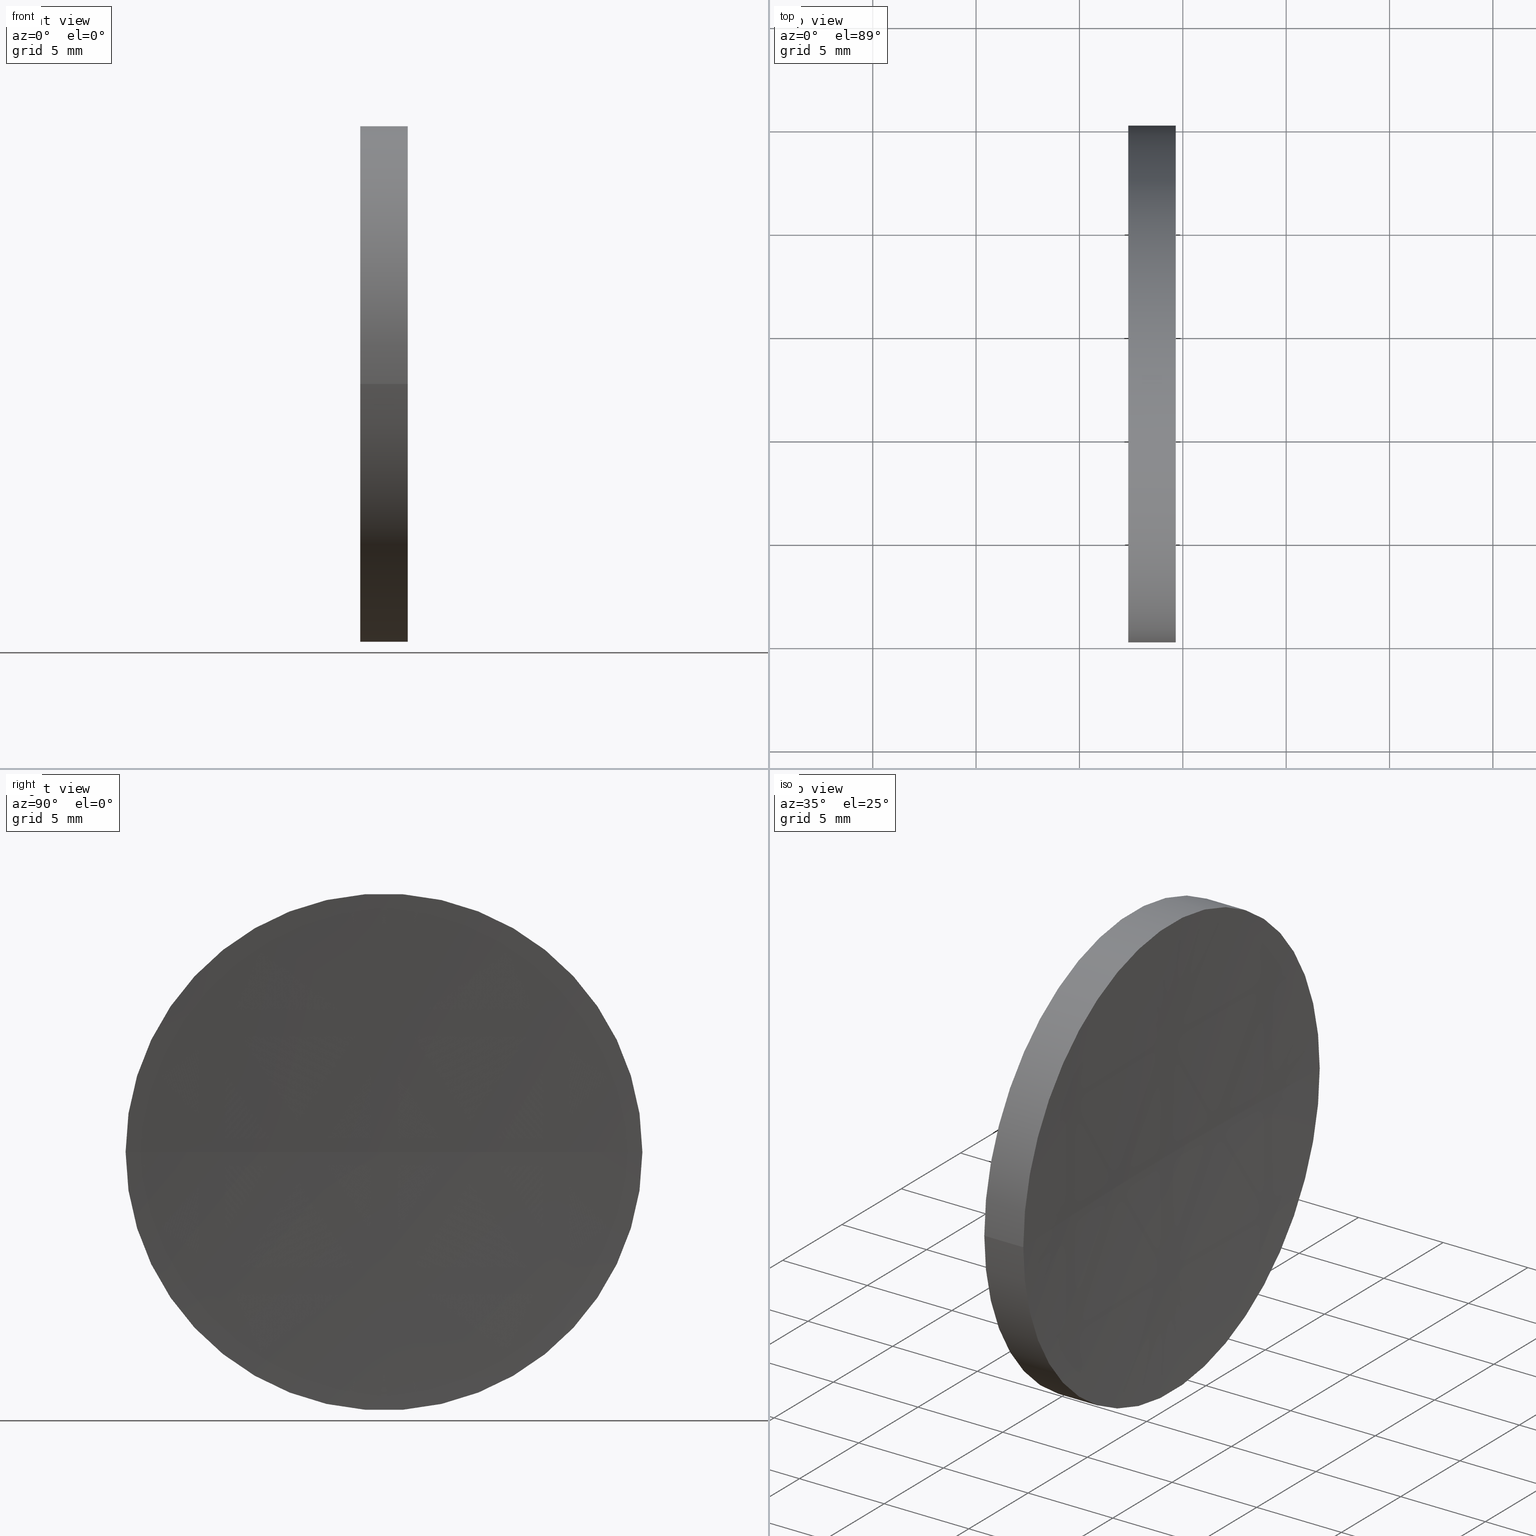
[diagram: canonical four-view strip — front | top / right | iso, engineering-drawing reading convention]
A machine part, canonical four-view strip (front | top / right | iso — engineering-drawing reading convention). The complete STEP part file that produces these views, byte-faithful:
ISO-10303-21;
HEADER;
FILE_DESCRIPTION (( 'STEP AP214' ),
    '1' );
FILE_NAME ('120161.STEP',
    '2019-06-21T01:49:08',
    ( '' ),
    ( '' ),
    'SwSTEP 2.0',
    'SolidWorks 2016',
    '' );
FILE_SCHEMA (( 'AUTOMOTIVE_DESIGN' ));
ENDSEC;

DATA;
#1 = AXIS2_PLACEMENT_3D ( 'NONE', #85, #37, #5 ) ;
#2 = CARTESIAN_POINT ( 'NONE',  ( 55.00739462442118100, 32.57872591329309800, 0.0000000000000000000 ) ) ;
#3 = ADVANCED_FACE ( 'NONE', ( #43 ), #111, .T. ) ;
#4 = AXIS2_PLACEMENT_3D ( 'NONE', #27, #30, #90 ) ;
#5 = DIRECTION ( 'NONE',  ( -5.551115123125784700E-016, -1.000000000000000000, 0.0000000000000000000 ) ) ;
#6 = SURFACE_STYLE_FILL_AREA ( #10 ) ;
#7 = ADVANCED_FACE ( 'NONE', ( #128 ), #112, .F. ) ;
#8 = FILL_AREA_STYLE ('',( #156 ) ) ;
#9 = EDGE_CURVE ( 'NONE', #98, #16, #32, .T. ) ;
#10 = FILL_AREA_STYLE ('',( #100 ) ) ;
#11 = DIRECTION ( 'NONE',  ( 0.0000000000000000000, -1.000000000000000000, -1.224646799147353200E-016 ) ) ;
#12 = DIRECTION ( 'NONE',  ( -9.351536221073556900E-032, -1.224646799147353200E-016, 1.000000000000000000 ) ) ;
#13 = PRODUCT_CONTEXT ( 'NONE', #115, 'mechanical' ) ;
#14 = CIRCLE ( 'NONE', #80, 12.49999999999999600 ) ;
#15 = PRODUCT_DEFINITION ( 'δ֪', '', #151, #79 ) ;
#16 = VERTEX_POINT ( 'NONE', #48 ) ;
#17 = SPHERICAL_SURFACE ( 'NONE', #154, 258.1799999999999500 ) ;
#18 = PRESENTATION_LAYER_ASSIGNMENT (  '', '', ( #152 ) ) ;
#19 = ORIENTED_EDGE ( 'NONE', *, *, #52, .T. ) ;
#20 = MECHANICAL_DESIGN_GEOMETRIC_PRESENTATION_REPRESENTATION (  '', ( #109 ), #46 ) ;
#21 = CARTESIAN_POINT ( 'NONE',  ( 59.66096665815478400, 32.57872591329309100, 0.0000000000000000000 ) ) ;
#22 = DIRECTION ( 'NONE',  ( -1.000000000000000000, 7.636108817321419600E-016, -0.0000000000000000000 ) ) ;
#23 = UNCERTAINTY_MEASURE_WITH_UNIT (LENGTH_MEASURE( 1.000000000000000100E-005 ), #160, 'distance_accuracy_value', 'NONE');
#24 = SURFACE_SIDE_STYLE ('',( #123 ) ) ;
#25 = VECTOR ( 'NONE', #148, 1000.000000000000000 ) ;
#26 = PRESENTATION_STYLE_ASSIGNMENT (( #113 ) ) ;
#27 = CARTESIAN_POINT ( 'NONE',  ( 0.0000000000000000000, 0.0000000000000000000, 0.0000000000000000000 ) ) ;
#28 =( LENGTH_UNIT ( ) NAMED_UNIT ( * ) SI_UNIT ( .MILLI., .METRE. ) );
#29 =( NAMED_UNIT ( * ) SI_UNIT ( $, .STERADIAN. ) SOLID_ANGLE_UNIT ( ) );
#30 = DIRECTION ( 'NONE',  ( 0.0000000000000000000, 0.0000000000000000000, 1.000000000000000000 ) ) ;
#31 = CYLINDRICAL_SURFACE ( 'NONE', #56, 12.49999999999999600 ) ;
#32 = CIRCLE ( 'NONE', #59, 258.1799999999999500 ) ;
#33 = LINE ( 'NONE', #104, #25 ) ;
#34 = ORIENTED_EDGE ( 'NONE', *, *, #130, .F. ) ;
#35 = DIRECTION ( 'NONE',  ( -5.551115123125785700E-016, -1.000000000000000000, 0.0000000000000000000 ) ) ;
#36 = DIRECTION ( 'NONE',  ( -1.000000000000000000, 7.636108817321419600E-016, -0.0000000000000000000 ) ) ;
#37 = DIRECTION ( 'NONE',  ( -1.000000000000000000, 7.636108817321419600E-016, -0.0000000000000000000 ) ) ;
#38 = DIRECTION ( 'NONE',  ( -1.000000000000000000, 0.0000000000000000000, 0.0000000000000000000 ) ) ;
#39 = EDGE_CURVE ( 'NONE', #94, #98, #92, .T. ) ;
#40 = CARTESIAN_POINT ( 'NONE',  ( 59.66096665815475600, 20.07872591329412500, 0.0000000000000000000 ) ) ;
#41 = APPLICATION_PROTOCOL_DEFINITION ( 'draft international standard', 'automotive_design', 1998, #88 ) ;
#42 = UNCERTAINTY_MEASURE_WITH_UNIT (LENGTH_MEASURE( 1.000000000000000100E-005 ), #161, 'distance_accuracy_value', 'NONE');
#43 = FACE_OUTER_BOUND ( 'NONE', #83, .T. ) ;
#44 = EDGE_CURVE ( 'NONE', #129, #166, #57, .T. ) ;
#45 = MECHANICAL_DESIGN_GEOMETRIC_PRESENTATION_REPRESENTATION (  '', ( #152 ), #55 ) ;
#46 =( GEOMETRIC_REPRESENTATION_CONTEXT ( 3 ) GLOBAL_UNCERTAINTY_ASSIGNED_CONTEXT ( ( #42 ) ) GLOBAL_UNIT_ASSIGNED_CONTEXT ( ( #161, #65, #29 ) ) REPRESENTATION_CONTEXT ( 'NONE', 'WORKASPACE' ) );
#47 = CARTESIAN_POINT ( 'NONE',  ( 317.5381901580211100, 32.57872591329316900, 0.0000000000000000000 ) ) ;
#48 = CARTESIAN_POINT ( 'NONE',  ( 59.35819015802113100, 32.57872591329334700, 0.0000000000000000000 ) ) ;
#49 = ORIENTED_EDGE ( 'NONE', *, *, #140, .T. ) ;
#50 = DIRECTION ( 'NONE',  ( -1.000000000000000000, 7.636108817321419600E-016, -0.0000000000000000000 ) ) ;
#51 = PRODUCT ( '120161', '120161', '', ( #13 ) ) ;
#52 = EDGE_CURVE ( 'NONE', #98, #94, #106, .T. ) ;
#53 = ORIENTED_EDGE ( 'NONE', *, *, #130, .T. ) ;
#54 = PRODUCT_RELATED_PRODUCT_CATEGORY ( 'part', '', ( #51 ) ) ;
#55 =( GEOMETRIC_REPRESENTATION_CONTEXT ( 3 ) GLOBAL_UNCERTAINTY_ASSIGNED_CONTEXT ( ( #97 ) ) GLOBAL_UNIT_ASSIGNED_CONTEXT ( ( #28, #126, #102 ) ) REPRESENTATION_CONTEXT ( 'NONE', 'WORKASPACE' ) );
#56 = AXIS2_PLACEMENT_3D ( 'NONE', #135, #50, #125 ) ;
#57 = CIRCLE ( 'NONE', #1, 12.49999999999999600 ) ;
#58 = ADVANCED_FACE ( 'NONE', ( #75 ), #17, .F. ) ;
#59 = AXIS2_PLACEMENT_3D ( 'NONE', #155, #122, #38 ) ;
#60 = DIRECTION ( 'NONE',  ( -5.551115123125785700E-016, -1.000000000000000000, 0.0000000000000000000 ) ) ;
#61 = DIRECTION ( 'NONE',  ( -8.600379770897487800E-016, -1.000000000000000000, 0.0000000000000000000 ) ) ;
#62 = EDGE_LOOP ( 'NONE', ( #114, #53 ) ) ;
#63 = MANIFOLD_SOLID_BREP ( '��ת1', #153 ) ;
#64 = DIRECTION ( 'NONE',  ( -1.000000000000000000, 7.636108817321419600E-016, -0.0000000000000000000 ) ) ;
#65 =( NAMED_UNIT ( * ) PLANE_ANGLE_UNIT ( ) SI_UNIT ( $, .RADIAN. ) );
#66 = DIRECTION ( 'NONE',  ( -8.600379770897487800E-016, -1.000000000000000000, 0.0000000000000000000 ) ) ;
#67 = ORIENTED_EDGE ( 'NONE', *, *, #140, .F. ) ;
#68 = AXIS2_PLACEMENT_3D ( 'NONE', #84, #132, #99 ) ;
#69 = ORIENTED_EDGE ( 'NONE', *, *, #39, .F. ) ;
#70 = ADVANCED_FACE ( 'NONE', ( #136 ), #31, .T. ) ;
#71 = COLOUR_RGB ( '',1.000000000000000000, 1.000000000000000000, 1.000000000000000000 ) ;
#72 = AXIS2_PLACEMENT_3D ( 'NONE', #89, #12, #11 ) ;
#73 = EDGE_LOOP ( 'NONE', ( #133, #118, #107 ) ) ;
#74 = CARTESIAN_POINT ( 'NONE',  ( 55.00739462442118800, 45.07872591329309100, 1.530808498934191100E-015 ) ) ;
#75 = FACE_OUTER_BOUND ( 'NONE', #73, .T. ) ;
#76 = DIRECTION ( 'NONE',  ( -5.551115123125784700E-016, -1.000000000000000000, 0.0000000000000000000 ) ) ;
#77 = AXIS2_PLACEMENT_3D ( 'NONE', #121, #36, #35 ) ;
#78 = SHAPE_DEFINITION_REPRESENTATION ( #162, #163 ) ;
#79 = PRODUCT_DEFINITION_CONTEXT ( 'detailed design', #88, 'design' ) ;
#80 = AXIS2_PLACEMENT_3D ( 'NONE', #159, #64, #76 ) ;
#81 = ORIENTED_EDGE ( 'NONE', *, *, #9, .F. ) ;
#82 = CIRCLE ( 'NONE', #72, 258.1799999999999500 ) ;
#83 = EDGE_LOOP ( 'NONE', ( #147, #142, #49, #34 ) ) ;
#84 = CARTESIAN_POINT ( 'NONE',  ( 57.35819015802111000, 32.57872591329309100, 0.0000000000000000000 ) ) ;
#85 = CARTESIAN_POINT ( 'NONE',  ( 57.35819015802111000, 32.57872591329309800, 0.0000000000000000000 ) ) ;
#86 = DIRECTION ( 'NONE',  ( 0.0000000000000000000, 0.0000000000000000000, 1.000000000000000000 ) ) ;
#87 = PRESENTATION_STYLE_ASSIGNMENT (( #138 ) ) ;
#88 = APPLICATION_CONTEXT ( 'automotive_design' ) ;
#89 = CARTESIAN_POINT ( 'NONE',  ( 317.5381901580211100, 32.57872591329316900, 0.0000000000000000000 ) ) ;
#90 = DIRECTION ( 'NONE',  ( 1.000000000000000000, 0.0000000000000000000, 0.0000000000000000000 ) ) ;
#91 = COLOUR_RGB ( '',1.000000000000000000, 1.000000000000000000, 1.000000000000000000 ) ;
#92 = CIRCLE ( 'NONE', #77, 12.49999999999999300 ) ;
#93 = AXIS2_PLACEMENT_3D ( 'NONE', #21, #120, #60 ) ;
#94 = VERTEX_POINT ( 'NONE', #158 ) ;
#95 = DIRECTION ( 'NONE',  ( -5.551115123125784700E-016, -1.000000000000000000, 0.0000000000000000000 ) ) ;
#96 = VECTOR ( 'NONE', #149, 1000.000000000000000 ) ;
#97 = UNCERTAINTY_MEASURE_WITH_UNIT (LENGTH_MEASURE( 1.000000000000000100E-005 ), #28, 'distance_accuracy_value', 'NONE');
#98 = VERTEX_POINT ( 'NONE', #40 ) ;
#99 = DIRECTION ( 'NONE',  ( 7.636108817321419600E-016, 1.000000000000000000, 0.0000000000000000000 ) ) ;
#100 = FILL_AREA_STYLE_COLOUR ( '', #91 ) ;
#101 = SURFACE_SIDE_STYLE ('',( #6 ) ) ;
#102 =( NAMED_UNIT ( * ) SI_UNIT ( $, .STERADIAN. ) SOLID_ANGLE_UNIT ( ) );
#103 = APPLICATION_PROTOCOL_DEFINITION ( 'draft international standard', 'automotive_design', 1998, #115 ) ;
#104 = CARTESIAN_POINT ( 'NONE',  ( 55.00739462442117400, 20.07872591329309800, 0.0000000000000000000 ) ) ;
#105 = EDGE_LOOP ( 'NONE', ( #19, #141, #157, #67 ) ) ;
#106 = CIRCLE ( 'NONE', #93, 12.49999999999999300 ) ;
#107 = ORIENTED_EDGE ( 'NONE', *, *, #9, .T. ) ;
#108 = ORIENTED_EDGE ( 'NONE', *, *, #137, .T. ) ;
#109 = STYLED_ITEM ( 'NONE', ( #26 ), #63 ) ;
#110 = FACE_OUTER_BOUND ( 'NONE', #131, .T. ) ;
#111 = CYLINDRICAL_SURFACE ( 'NONE', #144, 12.49999999999999600 ) ;
#112 = PLANE ( 'NONE',  #68 ) ;
#113 = SURFACE_STYLE_USAGE ( .BOTH. , #24 ) ;
#114 = ORIENTED_EDGE ( 'NONE', *, *, #44, .T. ) ;
#115 = APPLICATION_CONTEXT ( 'automotive_design' ) ;
#116 =( GEOMETRIC_REPRESENTATION_CONTEXT ( 3 ) GLOBAL_UNCERTAINTY_ASSIGNED_CONTEXT ( ( #23 ) ) GLOBAL_UNIT_ASSIGNED_CONTEXT ( ( #160, #164, #139 ) ) REPRESENTATION_CONTEXT ( 'NONE', 'WORKASPACE' ) );
#117 = PRESENTATION_LAYER_ASSIGNMENT (  '', '', ( #109 ) ) ;
#118 = ORIENTED_EDGE ( 'NONE', *, *, #52, .F. ) ;
#119 = EDGE_CURVE ( 'NONE', #94, #166, #165, .T. ) ;
#120 = DIRECTION ( 'NONE',  ( -1.000000000000000000, 7.636108817321419600E-016, -0.0000000000000000000 ) ) ;
#121 = CARTESIAN_POINT ( 'NONE',  ( 59.66096665815478400, 32.57872591329309100, 0.0000000000000000000 ) ) ;
#122 = DIRECTION ( 'NONE',  ( 0.0000000000000000000, -0.0000000000000000000, -1.000000000000000000 ) ) ;
#123 = SURFACE_STYLE_FILL_AREA ( #8 ) ;
#124 = CARTESIAN_POINT ( 'NONE',  ( 57.35819015802110200, 20.07872591329309800, 0.0000000000000000000 ) ) ;
#125 = DIRECTION ( 'NONE',  ( -5.551115123125784700E-016, -1.000000000000000000, 0.0000000000000000000 ) ) ;
#126 =( NAMED_UNIT ( * ) PLANE_ANGLE_UNIT ( ) SI_UNIT ( $, .RADIAN. ) );
#127 = CARTESIAN_POINT ( 'NONE',  ( 317.5381901580211100, 32.57872591329316900, 0.0000000000000000000 ) ) ;
#128 = FACE_OUTER_BOUND ( 'NONE', #62, .T. ) ;
#129 = VERTEX_POINT ( 'NONE', #124 ) ;
#130 = EDGE_CURVE ( 'NONE', #166, #129, #14, .T. ) ;
#131 = EDGE_LOOP ( 'NONE', ( #69, #108, #81 ) ) ;
#132 = DIRECTION ( 'NONE',  ( 1.000000000000000000, -7.636108817321419600E-016, 0.0000000000000000000 ) ) ;
#133 = ORIENTED_EDGE ( 'NONE', *, *, #137, .F. ) ;
#134 = DIRECTION ( 'NONE',  ( 0.0000000000000000000, 0.0000000000000000000, 1.000000000000000000 ) ) ;
#135 = CARTESIAN_POINT ( 'NONE',  ( 55.00739462442118100, 32.57872591329309800, 0.0000000000000000000 ) ) ;
#136 = FACE_OUTER_BOUND ( 'NONE', #105, .T. ) ;
#137 = EDGE_CURVE ( 'NONE', #94, #16, #82, .T. ) ;
#138 = SURFACE_STYLE_USAGE ( .BOTH. , #101 ) ;
#139 =( NAMED_UNIT ( * ) SI_UNIT ( $, .STERADIAN. ) SOLID_ANGLE_UNIT ( ) );
#140 = EDGE_CURVE ( 'NONE', #98, #129, #33, .T. ) ;
#141 = ORIENTED_EDGE ( 'NONE', *, *, #119, .T. ) ;
#142 = ORIENTED_EDGE ( 'NONE', *, *, #39, .T. ) ;
#143 = ADVANCED_FACE ( 'NONE', ( #110 ), #146, .F. ) ;
#144 = AXIS2_PLACEMENT_3D ( 'NONE', #2, #22, #95 ) ;
#145 = AXIS2_PLACEMENT_3D ( 'NONE', #127, #86, #66 ) ;
#146 = SPHERICAL_SURFACE ( 'NONE', #145, 258.1799999999999500 ) ;
#147 = ORIENTED_EDGE ( 'NONE', *, *, #119, .F. ) ;
#148 = DIRECTION ( 'NONE',  ( -1.000000000000000000, 7.636108817321419600E-016, -0.0000000000000000000 ) ) ;
#149 = DIRECTION ( 'NONE',  ( -1.000000000000000000, 7.636108817321419600E-016, -0.0000000000000000000 ) ) ;
#150 = CARTESIAN_POINT ( 'NONE',  ( 57.35819015802111700, 45.07872591329309100, 1.530808498934191500E-015 ) ) ;
#151 = PRODUCT_DEFINITION_FORMATION_WITH_SPECIFIED_SOURCE ( '�κ�', '', #51, .NOT_KNOWN. ) ;
#152 = STYLED_ITEM ( 'NONE', ( #87 ), #163 ) ;
#153 = CLOSED_SHELL ( 'NONE', ( #70, #143, #58, #3, #7 ) ) ;
#154 = AXIS2_PLACEMENT_3D ( 'NONE', #47, #134, #61 ) ;
#155 = CARTESIAN_POINT ( 'NONE',  ( 317.5381901580211100, 32.57872591329316900, 0.0000000000000000000 ) ) ;
#156 = FILL_AREA_STYLE_COLOUR ( '', #71 ) ;
#157 = ORIENTED_EDGE ( 'NONE', *, *, #44, .F. ) ;
#158 = CARTESIAN_POINT ( 'NONE',  ( 59.66096665815476300, 45.07872591329232400, 1.530808498934064100E-015 ) ) ;
#159 = CARTESIAN_POINT ( 'NONE',  ( 57.35819015802111000, 32.57872591329309800, 0.0000000000000000000 ) ) ;
#160 =( LENGTH_UNIT ( ) NAMED_UNIT ( * ) SI_UNIT ( .MILLI., .METRE. ) );
#161 =( LENGTH_UNIT ( ) NAMED_UNIT ( * ) SI_UNIT ( .MILLI., .METRE. ) );
#162 = PRODUCT_DEFINITION_SHAPE ( 'NONE', 'NONE',  #15 ) ;
#163 = ADVANCED_BREP_SHAPE_REPRESENTATION ( '120161', ( #63, #4 ), #116 ) ;
#164 =( NAMED_UNIT ( * ) PLANE_ANGLE_UNIT ( ) SI_UNIT ( $, .RADIAN. ) );
#165 = LINE ( 'NONE', #74, #96 ) ;
#166 = VERTEX_POINT ( 'NONE', #150 ) ;
ENDSEC;
END-ISO-10303-21;
